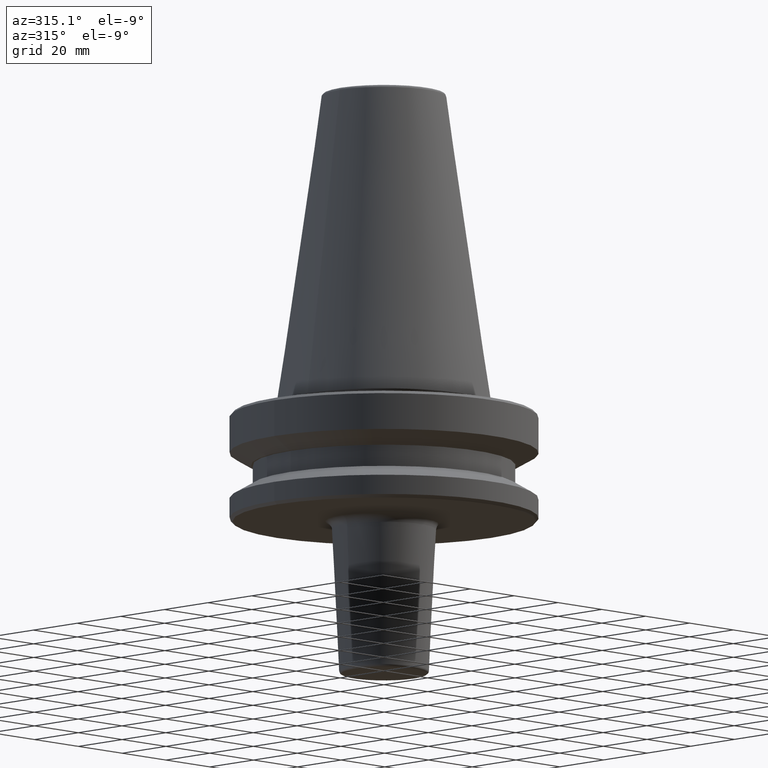
[diagram: clean part render]
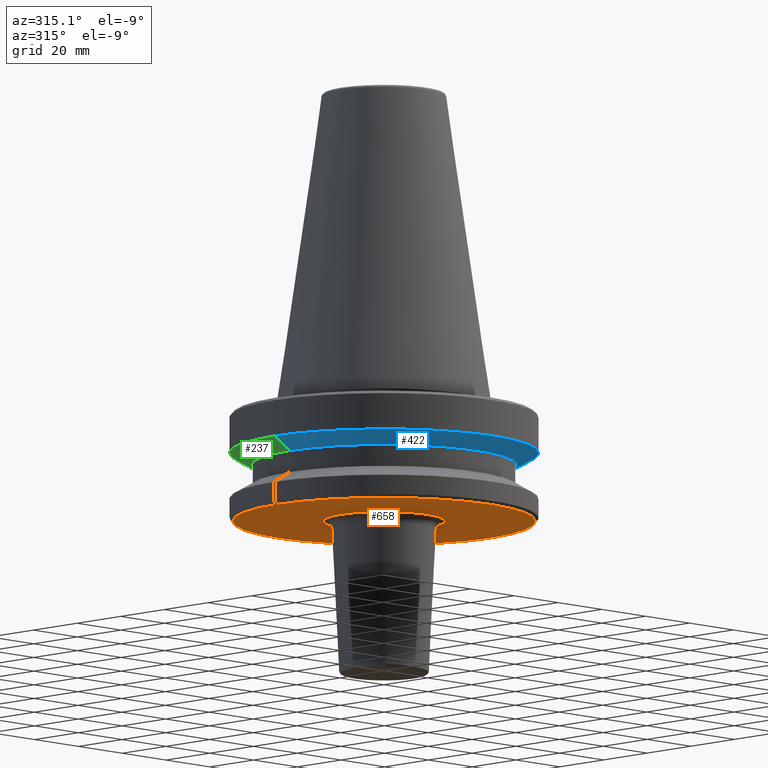
[diagram: same view with three faces highlighted in distinct colors, each labeled with its STEP entity id]
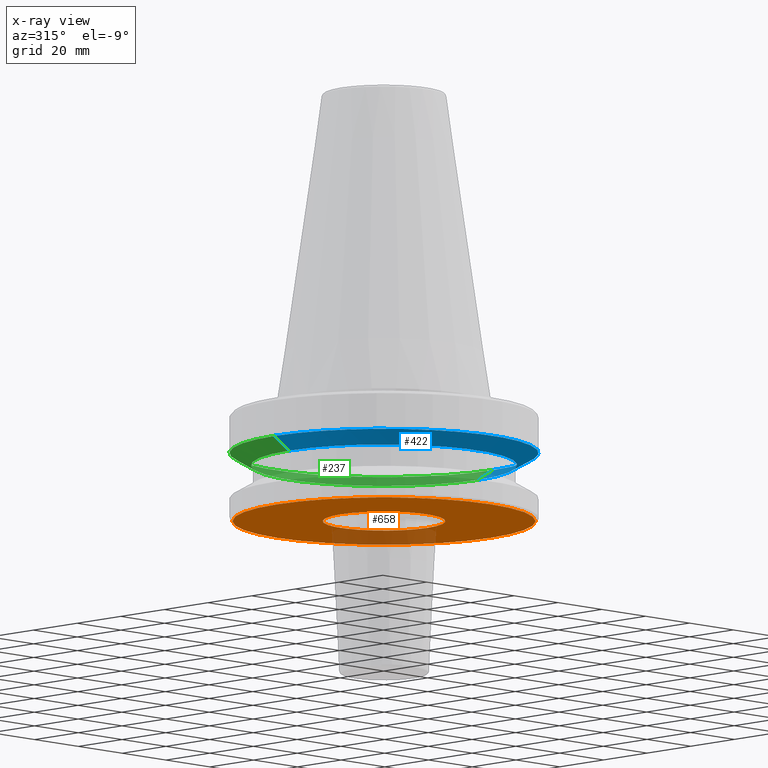
[diagram: x-ray of the same camera — body ghosted, the three highlighted faces saturated]
A machine part, auxiliary view with three faces highlighted in distinct colors.
The next image is the same camera in x-ray (body ghosted, the three faces saturated) — at least one of them is partly hidden behind the body in this view.
Their STEP definitions:

[orange] entity #658 — the highlighted planar face has unit normal (0, -0, 1).
#46 = EDGE_LOOP ( 'NONE', ( #119, #102 ) ) ;
#56 = AXIS2_PLACEMENT_3D ( 'NONE', #744, #748, #284 ) ;
#58 = CARTESIAN_POINT ( 'NONE',  ( -19.85374765917515200, 2.431382852188810900E-015, -38.00000000000000700 ) ) ;
#69 = DIRECTION ( 'NONE',  ( -0.0000000000000000000, -0.0000000000000000000, 1.000000000000000000 ) ) ;
#72 = CARTESIAN_POINT ( 'NONE',  ( -49.00000000000000000, 6.062001655779398500E-015, -38.00000000000002100 ) ) ;
#90 = DIRECTION ( 'NONE',  ( -0.0000000000000000000, -0.0000000000000000000, 1.000000000000000000 ) ) ;
#102 = ORIENTED_EDGE ( 'NONE', *, *, #559, .T. ) ;
#119 = ORIENTED_EDGE ( 'NONE', *, *, #794, .T. ) ;
#158 = CIRCLE ( 'NONE', #402, 49.00000000000000000 ) ;
#177 = FACE_OUTER_BOUND ( 'NONE', #484, .T. ) ;
#197 = CIRCLE ( 'NONE', #491, 19.85374765917515200 ) ;
#255 = CARTESIAN_POINT ( 'NONE',  ( 19.85374765917515200, 0.0000000000000000000, -38.00000000000000700 ) ) ;
#258 = EDGE_CURVE ( 'NONE', #615, #808, #261, .T. ) ;
#261 = CIRCLE ( 'NONE', #761, 49.00000000000000000 ) ;
#266 = CARTESIAN_POINT ( 'NONE',  ( 0.0000000000000000000, 0.0000000000000000000, -38.00000000000002100 ) ) ;
#284 = DIRECTION ( 'NONE',  ( 1.000000000000000000, 0.0000000000000000000, 0.0000000000000000000 ) ) ;
#378 = CARTESIAN_POINT ( 'NONE',  ( 0.0000000000000000000, 0.0000000000000000000, -38.00000000000000700 ) ) ;
#387 = ORIENTED_EDGE ( 'NONE', *, *, #952, .F. ) ;
#397 = DIRECTION ( 'NONE',  ( 1.000000000000000000, 0.0000000000000000000, 0.0000000000000000000 ) ) ;
#402 = AXIS2_PLACEMENT_3D ( 'NONE', #872, #418, #953 ) ;
#418 = DIRECTION ( 'NONE',  ( -0.0000000000000000000, -0.0000000000000000000, 1.000000000000000000 ) ) ;
#462 = DIRECTION ( 'NONE',  ( 1.000000000000000000, 0.0000000000000000000, 0.0000000000000000000 ) ) ;
#484 = EDGE_LOOP ( 'NONE', ( #804, #387 ) ) ;
#491 = AXIS2_PLACEMENT_3D ( 'NONE', #378, #915, #462 ) ;
#524 = FACE_BOUND ( 'NONE', #46, .T. ) ;
#528 = CARTESIAN_POINT ( 'NONE',  ( 0.0000000000000000000, 0.0000000000000000000, -38.00000000000000700 ) ) ;
#559 = EDGE_CURVE ( 'NONE', #705, #959, #197, .T. ) ;
#608 = DIRECTION ( 'NONE',  ( 1.000000000000000000, 0.0000000000000000000, 0.0000000000000000000 ) ) ;
#615 = VERTEX_POINT ( 'NONE', #618 ) ;
#618 = CARTESIAN_POINT ( 'NONE',  ( 49.00000000000000000, 0.0000000000000000000, -38.00000000000002100 ) ) ;
#628 = AXIS2_PLACEMENT_3D ( 'NONE', #528, #69, #608 ) ;
#658 = ADVANCED_FACE ( 'NONE', ( #524, #177 ), #675, .F. ) ;
#675 = PLANE ( 'NONE',  #56 ) ;
#705 = VERTEX_POINT ( 'NONE', #58 ) ;
#744 = CARTESIAN_POINT ( 'NONE',  ( 0.0000000000000000000, 49.00000000000000000, -38.00000000000000700 ) ) ;
#748 = DIRECTION ( 'NONE',  ( 0.0000000000000000000, -0.0000000000000000000, 1.000000000000000000 ) ) ;
#761 = AXIS2_PLACEMENT_3D ( 'NONE', #266, #90, #397 ) ;
#794 = EDGE_CURVE ( 'NONE', #959, #705, #821, .T. ) ;
#804 = ORIENTED_EDGE ( 'NONE', *, *, #258, .F. ) ;
#808 = VERTEX_POINT ( 'NONE', #72 ) ;
#821 = CIRCLE ( 'NONE', #628, 19.85374765917515200 ) ;
#872 = CARTESIAN_POINT ( 'NONE',  ( 0.0000000000000000000, 0.0000000000000000000, -38.00000000000002100 ) ) ;
#915 = DIRECTION ( 'NONE',  ( -0.0000000000000000000, -0.0000000000000000000, 1.000000000000000000 ) ) ;
#952 = EDGE_CURVE ( 'NONE', #808, #615, #158, .T. ) ;
#953 = DIRECTION ( 'NONE',  ( 1.000000000000000000, 0.0000000000000000000, 0.0000000000000000000 ) ) ;
#959 = VERTEX_POINT ( 'NONE', #255 ) ;

[blue] entity #422 — the highlighted conical surface has half-angle 60 deg.
#28 = CARTESIAN_POINT ( 'NONE',  ( 0.0000000000000000000, 0.0000000000000000000, -19.70000000000001000 ) ) ;
#48 = CARTESIAN_POINT ( 'NONE',  ( -43.07217782649103600, 5.274820470751785100E-015, -19.70000000000001000 ) ) ;
#77 = ORIENTED_EDGE ( 'NONE', *, *, #529, .F. ) ;
#95 = CARTESIAN_POINT ( 'NONE',  ( 43.07217782649103600, 0.0000000000000000000, -19.70000000000001000 ) ) ;
#128 = DIRECTION ( 'NONE',  ( -0.8660254037844388200, 1.060575238724907200E-016, 0.4999999999999997200 ) ) ;
#147 = CARTESIAN_POINT ( 'NONE',  ( 43.07217782649103600, 0.0000000000000000000, -19.70000000000001000 ) ) ;
#218 = CARTESIAN_POINT ( 'NONE',  ( 50.00000000000000000, 0.0000000000000000000, -15.70022000322675400 ) ) ;
#228 = VERTEX_POINT ( 'NONE', #611 ) ;
#250 = FACE_OUTER_BOUND ( 'NONE', #734, .T. ) ;
#279 = VECTOR ( 'NONE', #128, 1000.000000000000000 ) ;
#283 = CARTESIAN_POINT ( 'NONE',  ( 0.0000000000000000000, 0.0000000000000000000, -19.70000000000001000 ) ) ;
#290 = CARTESIAN_POINT ( 'NONE',  ( 0.0000000000000000000, 0.0000000000000000000, -15.70022000322675400 ) ) ;
#322 = ORIENTED_EDGE ( 'NONE', *, *, #640, .T. ) ;
#351 = DIRECTION ( 'NONE',  ( -0.0000000000000000000, -0.0000000000000000000, 1.000000000000000000 ) ) ;
#359 = DIRECTION ( 'NONE',  ( 1.000000000000000000, 0.0000000000000000000, 0.0000000000000000000 ) ) ;
#370 = DIRECTION ( 'NONE',  ( 1.000000000000000000, 0.0000000000000000000, 0.0000000000000000000 ) ) ;
#386 = AXIS2_PLACEMENT_3D ( 'NONE', #28, #351, #889 ) ;
#390 = EDGE_CURVE ( 'NONE', #555, #714, #957, .T. ) ;
#422 = ADVANCED_FACE ( 'NONE', ( #250 ), #997, .T. ) ;
#529 = EDGE_CURVE ( 'NONE', #228, #733, #982, .T. ) ;
#555 = VERTEX_POINT ( 'NONE', #147 ) ;
#568 = AXIS2_PLACEMENT_3D ( 'NONE', #290, #832, #370 ) ;
#611 = CARTESIAN_POINT ( 'NONE',  ( -43.07217782649103600, 5.699027233244276000E-015, -19.70000000000001000 ) ) ;
#636 = CIRCLE ( 'NONE', #568, 50.00000000000000000 ) ;
#640 = EDGE_CURVE ( 'NONE', #228, #555, #868, .T. ) ;
#679 = ORIENTED_EDGE ( 'NONE', *, *, #785, .F. ) ;
#714 = VERTEX_POINT ( 'NONE', #218 ) ;
#724 = VECTOR ( 'NONE', #783, 1000.000000000000000 ) ;
#733 = VERTEX_POINT ( 'NONE', #760 ) ;
#734 = EDGE_LOOP ( 'NONE', ( #77, #322, #992, #679 ) ) ;
#760 = CARTESIAN_POINT ( 'NONE',  ( -50.00000000000000000, 6.123233995736766900E-015, -15.70022000322675400 ) ) ;
#783 = DIRECTION ( 'NONE',  ( 0.8660254037844388200, 0.0000000000000000000, 0.4999999999999997200 ) ) ;
#785 = EDGE_CURVE ( 'NONE', #733, #714, #636, .T. ) ;
#792 = AXIS2_PLACEMENT_3D ( 'NONE', #283, #820, #359 ) ;
#820 = DIRECTION ( 'NONE',  ( -0.0000000000000000000, -0.0000000000000000000, 1.000000000000000000 ) ) ;
#832 = DIRECTION ( 'NONE',  ( -0.0000000000000000000, -0.0000000000000000000, 1.000000000000000000 ) ) ;
#868 = CIRCLE ( 'NONE', #792, 43.07217782649103600 ) ;
#889 = DIRECTION ( 'NONE',  ( 1.000000000000000000, 0.0000000000000000000, 0.0000000000000000000 ) ) ;
#957 = LINE ( 'NONE', #95, #724 ) ;
#982 = LINE ( 'NONE', #48, #279 ) ;
#992 = ORIENTED_EDGE ( 'NONE', *, *, #390, .T. ) ;
#997 = CONICAL_SURFACE ( 'NONE', #386, 43.07217782649103600, 1.047197551196598100 ) ;

[green] entity #237 — the highlighted conical surface has half-angle 60 deg.
#8 = EDGE_CURVE ( 'NONE', #555, #228, #406, .T. ) ;
#48 = CARTESIAN_POINT ( 'NONE',  ( -43.07217782649103600, 5.274820470751785100E-015, -19.70000000000001000 ) ) ;
#95 = CARTESIAN_POINT ( 'NONE',  ( 43.07217782649103600, 0.0000000000000000000, -19.70000000000001000 ) ) ;
#111 = DIRECTION ( 'NONE',  ( 1.000000000000000000, 0.0000000000000000000, 0.0000000000000000000 ) ) ;
#128 = DIRECTION ( 'NONE',  ( -0.8660254037844388200, 1.060575238724907200E-016, 0.4999999999999997200 ) ) ;
#147 = CARTESIAN_POINT ( 'NONE',  ( 43.07217782649103600, 0.0000000000000000000, -19.70000000000001000 ) ) ;
#154 = CONICAL_SURFACE ( 'NONE', #614, 43.07217782649103600, 1.047197551196598100 ) ;
#162 = ORIENTED_EDGE ( 'NONE', *, *, #8, .T. ) ;
#218 = CARTESIAN_POINT ( 'NONE',  ( 50.00000000000000000, 0.0000000000000000000, -15.70022000322675400 ) ) ;
#228 = VERTEX_POINT ( 'NONE', #611 ) ;
#237 = ADVANCED_FACE ( 'NONE', ( #416 ), #154, .T. ) ;
#279 = VECTOR ( 'NONE', #128, 1000.000000000000000 ) ;
#281 = EDGE_LOOP ( 'NONE', ( #162, #541, #843, #307 ) ) ;
#307 = ORIENTED_EDGE ( 'NONE', *, *, #390, .F. ) ;
#308 = DIRECTION ( 'NONE',  ( 1.000000000000000000, 0.0000000000000000000, 0.0000000000000000000 ) ) ;
#390 = EDGE_CURVE ( 'NONE', #555, #714, #957, .T. ) ;
#403 = CARTESIAN_POINT ( 'NONE',  ( 0.0000000000000000000, 0.0000000000000000000, -19.70000000000001000 ) ) ;
#406 = CIRCLE ( 'NONE', #473, 43.07217782649103600 ) ;
#416 = FACE_OUTER_BOUND ( 'NONE', #281, .T. ) ;
#452 = CARTESIAN_POINT ( 'NONE',  ( 0.0000000000000000000, 0.0000000000000000000, -19.70000000000001000 ) ) ;
#461 = DIRECTION ( 'NONE',  ( -0.0000000000000000000, -0.0000000000000000000, 1.000000000000000000 ) ) ;
#473 = AXIS2_PLACEMENT_3D ( 'NONE', #452, #908, #308 ) ;
#529 = EDGE_CURVE ( 'NONE', #228, #733, #982, .T. ) ;
#541 = ORIENTED_EDGE ( 'NONE', *, *, #529, .T. ) ;
#555 = VERTEX_POINT ( 'NONE', #147 ) ;
#611 = CARTESIAN_POINT ( 'NONE',  ( -43.07217782649103600, 5.699027233244276000E-015, -19.70000000000001000 ) ) ;
#614 = AXIS2_PLACEMENT_3D ( 'NONE', #403, #780, #111 ) ;
#714 = VERTEX_POINT ( 'NONE', #218 ) ;
#722 = AXIS2_PLACEMENT_3D ( 'NONE', #913, #461, #995 ) ;
#724 = VECTOR ( 'NONE', #783, 1000.000000000000000 ) ;
#733 = VERTEX_POINT ( 'NONE', #760 ) ;
#760 = CARTESIAN_POINT ( 'NONE',  ( -50.00000000000000000, 6.123233995736766900E-015, -15.70022000322675400 ) ) ;
#780 = DIRECTION ( 'NONE',  ( -0.0000000000000000000, -0.0000000000000000000, 1.000000000000000000 ) ) ;
#783 = DIRECTION ( 'NONE',  ( 0.8660254037844388200, 0.0000000000000000000, 0.4999999999999997200 ) ) ;
#800 = EDGE_CURVE ( 'NONE', #714, #733, #835, .T. ) ;
#835 = CIRCLE ( 'NONE', #722, 50.00000000000000000 ) ;
#843 = ORIENTED_EDGE ( 'NONE', *, *, #800, .F. ) ;
#908 = DIRECTION ( 'NONE',  ( -0.0000000000000000000, -0.0000000000000000000, 1.000000000000000000 ) ) ;
#913 = CARTESIAN_POINT ( 'NONE',  ( 0.0000000000000000000, 0.0000000000000000000, -15.70022000322675400 ) ) ;
#957 = LINE ( 'NONE', #95, #724 ) ;
#982 = LINE ( 'NONE', #48, #279 ) ;
#995 = DIRECTION ( 'NONE',  ( 1.000000000000000000, 0.0000000000000000000, 0.0000000000000000000 ) ) ;